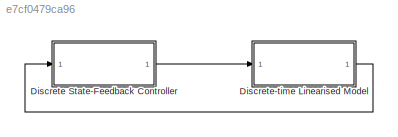
MODEL slx_e7cf0479ca96
KIND model
CONFIG AbsTol = auto
CONFIG EnableMultiTasking = off
CONFIG FixedStep = auto
CONFIG MaxStep = auto
CONFIG MinStep = auto
CONFIG RelTol = 1e-3
CONFIG SampleTimeConstraint = Unconstrained
CONFIG SolverName = VariableStepAuto
CONFIG StartTime = 0.0
CONFIG StopTime = 10.0
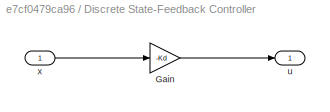
BLOCK [SubSystem] Discrete State-Feedback Controller
  Ports = [1, 1]
  RequestExecContextInheritance = off
BLOCK [Gain] Discrete State-Feedback Controller/Gain
  Gain = -Kd
  Multiplication = Matrix(K*u)
BLOCK [Outport] Discrete State-Feedback Controller/u
BLOCK [Inport] Discrete State-Feedback Controller/x
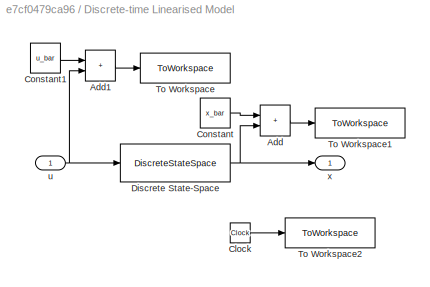
BLOCK [SubSystem] Discrete-time Linearised Model
  Ports = [1, 1]
  RequestExecContextInheritance = off
BLOCK [Sum] Discrete-time Linearised Model/Add
  IconShape = rectangular
  Ports = [2, 1]
BLOCK [Sum] Discrete-time Linearised Model/Add1
  IconShape = rectangular
  Ports = [2, 1]
BLOCK [Clock] Discrete-time Linearised Model/Clock
BLOCK [Constant] Discrete-time Linearised Model/Constant
  Value = x_bar
BLOCK [Constant] Discrete-time Linearised Model/Constant1
  Value = u_bar
BLOCK [DiscreteStateSpace] Discrete-time Linearised Model/Discrete State-Space
  A = Ad
  B = Bd
  C = Cd
  D = Dd
  InitialCondition = x0_tilde
  SampleTime = Ts
BLOCK [ToWorkspace] Discrete-time Linearised Model/To Workspace
  FixptAsFi = on
  MaxDataPoints = inf
  Ports = [1]
  SampleTime = Ts
  VariableName = u
BLOCK [ToWorkspace] Discrete-time Linearised Model/To Workspace1
  FixptAsFi = on
  MaxDataPoints = inf
  Ports = [1]
  SampleTime = Ts
  VariableName = x
BLOCK [ToWorkspace] Discrete-time Linearised Model/To Workspace2
  FixptAsFi = on
  MaxDataPoints = inf
  Ports = [1]
  SampleTime = Ts
  VariableName = t
BLOCK [Inport] Discrete-time Linearised Model/u
BLOCK [Outport] Discrete-time Linearised Model/x
LINE Discrete State-Feedback Controller/Gain:1 -> Discrete State-Feedback Controller/u:1
LINE Discrete State-Feedback Controller/x:1 -> Discrete State-Feedback Controller/Gain:1
LINE Discrete State-Feedback Controller:1 -> Discrete-time Linearised Model:1
LINE Discrete-time Linearised Model/Add1:1 -> Discrete-time Linearised Model/To Workspace:1
LINE Discrete-time Linearised Model/Add:1 -> Discrete-time Linearised Model/To Workspace1:1
LINE Discrete-time Linearised Model/Clock:1 -> Discrete-time Linearised Model/To Workspace2:1
LINE Discrete-time Linearised Model/Constant1:1 -> Discrete-time Linearised Model/Add1:1
LINE Discrete-time Linearised Model/Constant:1 -> Discrete-time Linearised Model/Add:1
NET Discrete-time Linearised Model/Discrete State-Space:1 -> Discrete-time Linearised Model/Add:2, Discrete-time Linearised Model/x:1
NET Discrete-time Linearised Model/u:1 -> Discrete-time Linearised Model/Add1:2, Discrete-time Linearised Model/Discrete State-Space:1
LINE Discrete-time Linearised Model:1 -> Discrete State-Feedback Controller:1
note: NET lines group one-source signal fan-out (src -> all destinations, sorted); 1:1 wires keep LINE
